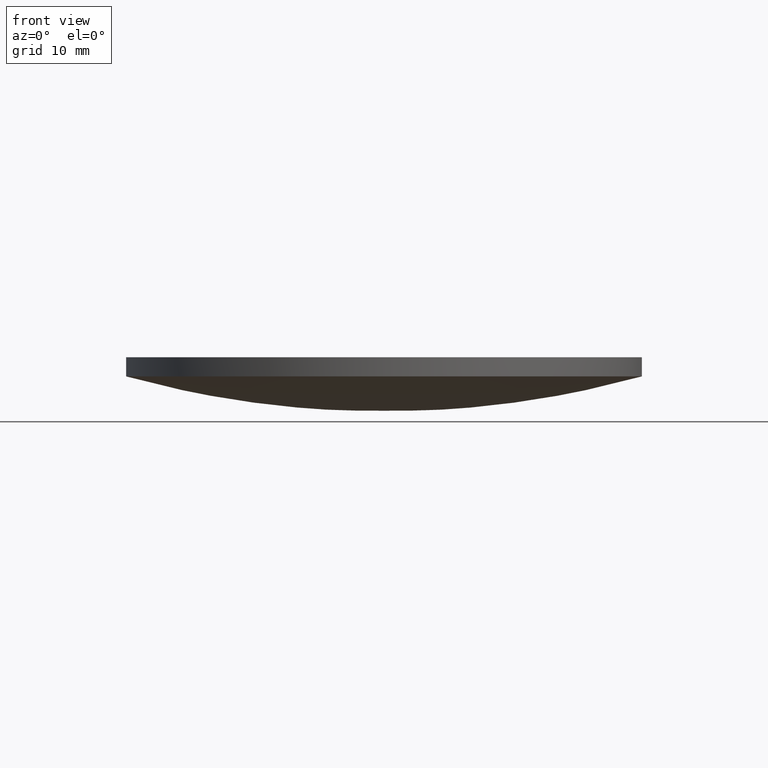
[diagram: clean part render]
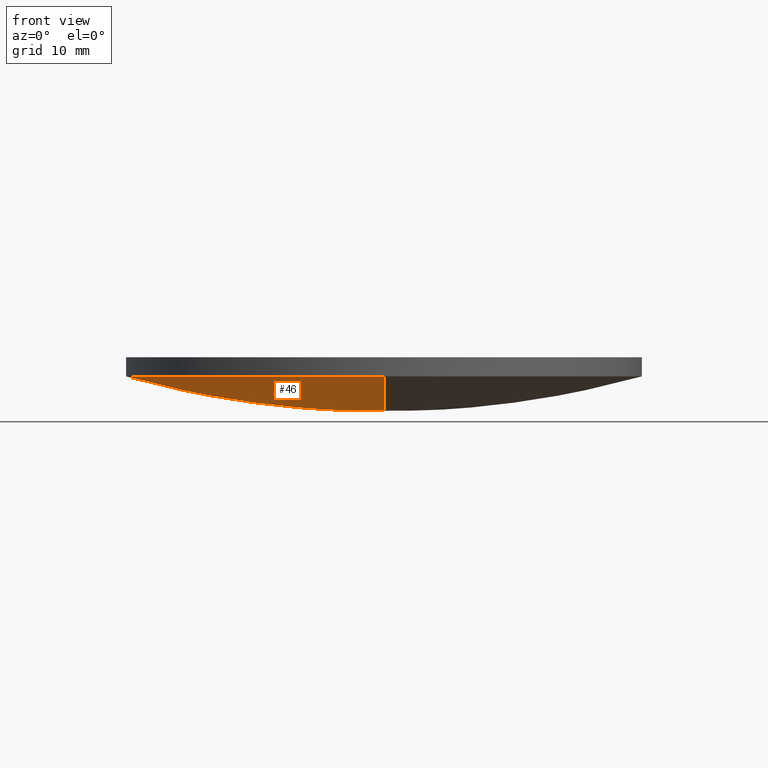
[diagram: same view with one face highlighted and labeled with its STEP entity id]
A machine part, front view. The second image highlights one B-rep face of the part: STEP entity #46.
In plain terms, the highlighted face is a freeform B-spline surface patch.
Its self-contained STEP definition (entity closure, byte-faithful):
#13 = CARTESIAN_POINT ( 'NONE',  ( -13.13738015587854400, 13.17463516135467600, -1.811732009904365200 ) ) ;
#14 = DIRECTION ( 'NONE',  ( 1.000000000000000000, 0.0000000000000000000, -2.276539994720219300E-017 ) ) ;
#18 = CARTESIAN_POINT ( 'NONE',  ( 2.830399681397611900E-014, 38.09999999999993700, 5.176491833698705100 ) ) ;
#27 = CARTESIAN_POINT ( 'NONE',  ( -9.325873406851310200E-015, -1.776356839400250100E-015, 5.176491833698710500 ) ) ;
#38 = CARTESIAN_POINT ( 'NONE',  ( -36.90042726764757900, -38.54582829949171700, 10.34465813652077400 ) ) ;
#42 = DIRECTION ( 'NONE',  ( -2.331176954593499900E-017, -1.086877198725570000E-033, -1.000000000000000000 ) ) ;
#43 = CARTESIAN_POINT ( 'NONE',  ( -38.80917554072667000, 13.17463516135467700, 3.493141128107184900 ) ) ;
#45 = EDGE_CURVE ( 'NONE', #170, #74, #94, .T. ) ;
#46 = ADVANCED_FACE ( 'NONE', ( #165 ), #124, .T. ) ;
#53 = VERTEX_POINT ( 'NONE', #155 ) ;
#58 = CARTESIAN_POINT ( 'NONE',  ( 0.0000000000000000000, -2.842170943040400100E-014, 142.8000000000000100 ) ) ;
#61 = CARTESIAN_POINT ( 'NONE',  ( 0.0000000000000000000, -38.54582829949171700, 5.300694108275216400 ) ) ;
#62 = CARTESIAN_POINT ( 'NONE',  ( -24.86740508091239800, 38.54582829949168900, 6.992406322703711700 ) ) ;
#74 = VERTEX_POINT ( 'NONE', #18 ) ;
#77 = EDGE_LOOP ( 'NONE', ( #129, #221, #214 ) ) ;
#85 = DIRECTION ( 'NONE',  ( 1.000000000000000000, 0.0000000000000000000, -2.276539994720219300E-017 ) ) ;
#94 = CIRCLE ( 'NONE', #172, 142.7999999999999800 ) ;
#102 = CARTESIAN_POINT ( 'NONE',  ( -36.90042726764757200, 38.54582829949168100, 10.34465813652080100 ) ) ;
#111 = CIRCLE ( 'NONE', #197, 38.10000000000000100 ) ;
#115 = EDGE_CURVE ( 'NONE', #53, #74, #158, .T. ) ;
#119 = CARTESIAN_POINT ( 'NONE',  ( -26.15372125714175800, -13.17463516135471300, -0.03251260363730351000 ) ) ;
#120 = CARTESIAN_POINT ( 'NONE',  ( -12.49124554116605900, -38.54582829949172400, 5.300694108275216400 ) ) ;
#124 =( BOUNDED_SURFACE ( )  B_SPLINE_SURFACE ( 3, 3, ( 
 ( #38, #157, #120, #61 ),
 ( #216, #119, #183, #179 ),
 ( #43, #235, #13, #184 ),
 ( #102, #62, #160, #139 ) ),
 .UNSPECIFIED., .F., .F., .F. ) 
 B_SPLINE_SURFACE_WITH_KNOTS ( ( 4, 4 ),
 ( 4, 4 ),
 ( 0.0000000000000000000, 1.000000000000000000 ),
 ( 0.0000000000000000000, 1.000000000000000000 ),
 .UNSPECIFIED. ) 
 GEOMETRIC_REPRESENTATION_ITEM ( )  RATIONAL_B_SPLINE_SURFACE ( (
 ( 1.000000000000000000, 0.9938577781780347800, 0.9938577781780347800, 1.000000000000000000),
 ( 0.9752535289062782600, 0.9692633053990815700, 0.9692633053990815700, 0.9752535289062782600),
 ( 0.9752535289062782600, 0.9692633053990815700, 0.9692633053990815700, 0.9752535289062782600),
 ( 1.000000000000000000, 0.9938577781780347800, 0.9938577781780347800, 1.000000000000000000) ) ) 
 REPRESENTATION_ITEM ( '' )  SURFACE ( )  );
#125 = EDGE_CURVE ( 'NONE', #170, #53, #111, .T. ) ;
#129 = ORIENTED_EDGE ( 'NONE', *, *, #45, .F. ) ;
#139 = CARTESIAN_POINT ( 'NONE',  ( 0.0000000000000000000, 38.54582829949168100, 5.300694108275246600 ) ) ;
#140 = CARTESIAN_POINT ( 'NONE',  ( -9.325873406851310200E-015, -1.776356839400250100E-015, 5.176491833698710500 ) ) ;
#141 = DIRECTION ( 'NONE',  ( -2.331176954593499900E-017, -1.086877198725570000E-033, -1.000000000000000000 ) ) ;
#144 = CARTESIAN_POINT ( 'NONE',  ( 2.830399681397611900E-014, -38.09999999999996600, 5.176491833698705100 ) ) ;
#155 = CARTESIAN_POINT ( 'NONE',  ( -38.10000000000000900, 2.889547465351166000E-015, 5.176491833698711400 ) ) ;
#157 = CARTESIAN_POINT ( 'NONE',  ( -24.86740508091240500, -38.54582829949172400, 6.992406322703684100 ) ) ;
#158 = CIRCLE ( 'NONE', #225, 38.10000000000000100 ) ;
#159 = DIRECTION ( 'NONE',  ( 0.0000000000000000000, -1.000000000000000000, 0.0000000000000000000 ) ) ;
#160 = CARTESIAN_POINT ( 'NONE',  ( -12.49124554116605500, 38.54582829949168900, 5.300694108275246600 ) ) ;
#162 = DIRECTION ( 'NONE',  ( 1.000000000000000000, 0.0000000000000000000, 2.056625150099659900E-016 ) ) ;
#165 = FACE_OUTER_BOUND ( 'NONE', #77, .T. ) ;
#170 = VERTEX_POINT ( 'NONE', #144 ) ;
#172 = AXIS2_PLACEMENT_3D ( 'NONE', #58, #162, #159 ) ;
#179 = CARTESIAN_POINT ( 'NONE',  ( 0.0000000000000000000, -13.17463516135470900, -1.811732009904391600 ) ) ;
#183 = CARTESIAN_POINT ( 'NONE',  ( -13.13738015587854600, -13.17463516135471300, -1.811732009904391400 ) ) ;
#184 = CARTESIAN_POINT ( 'NONE',  ( 0.0000000000000000000, 13.17463516135467700, -1.811732009904365700 ) ) ;
#197 = AXIS2_PLACEMENT_3D ( 'NONE', #140, #141, #85 ) ;
#214 = ORIENTED_EDGE ( 'NONE', *, *, #115, .T. ) ;
#216 = CARTESIAN_POINT ( 'NONE',  ( -38.80917554072667700, -13.17463516135470900, 3.493141128107159200 ) ) ;
#221 = ORIENTED_EDGE ( 'NONE', *, *, #125, .T. ) ;
#225 = AXIS2_PLACEMENT_3D ( 'NONE', #27, #42, #14 ) ;
#235 = CARTESIAN_POINT ( 'NONE',  ( -26.15372125714175800, 13.17463516135467600, -0.03251260363727791200 ) ) ;